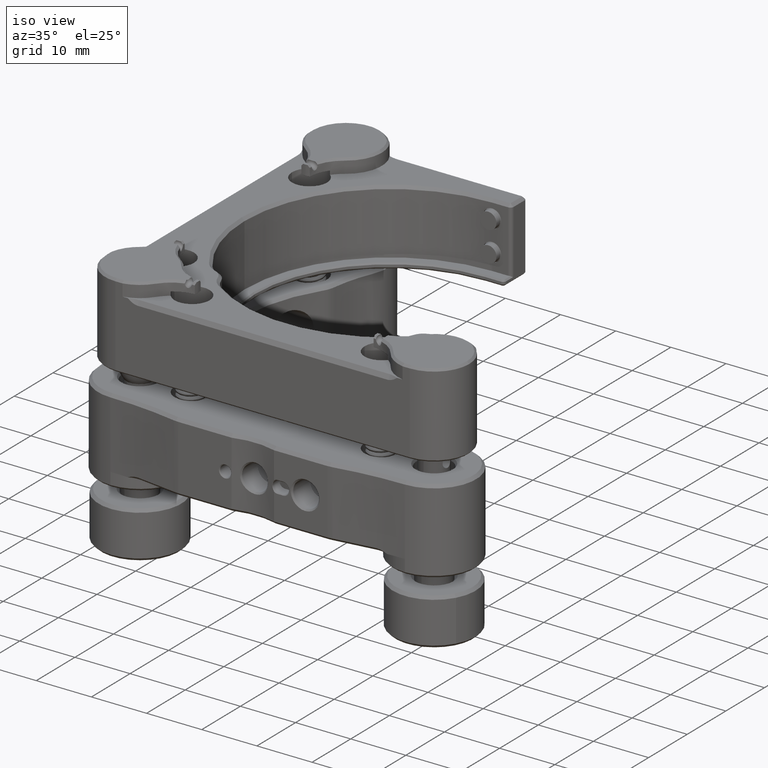
[diagram: clean part render]
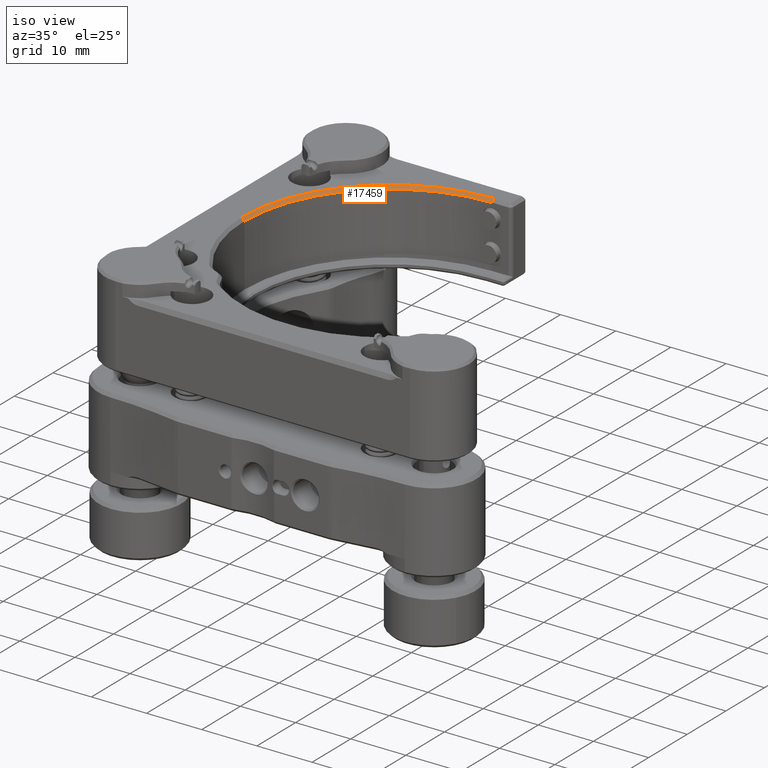
[diagram: same view with one face highlighted and labeled with its STEP entity id]
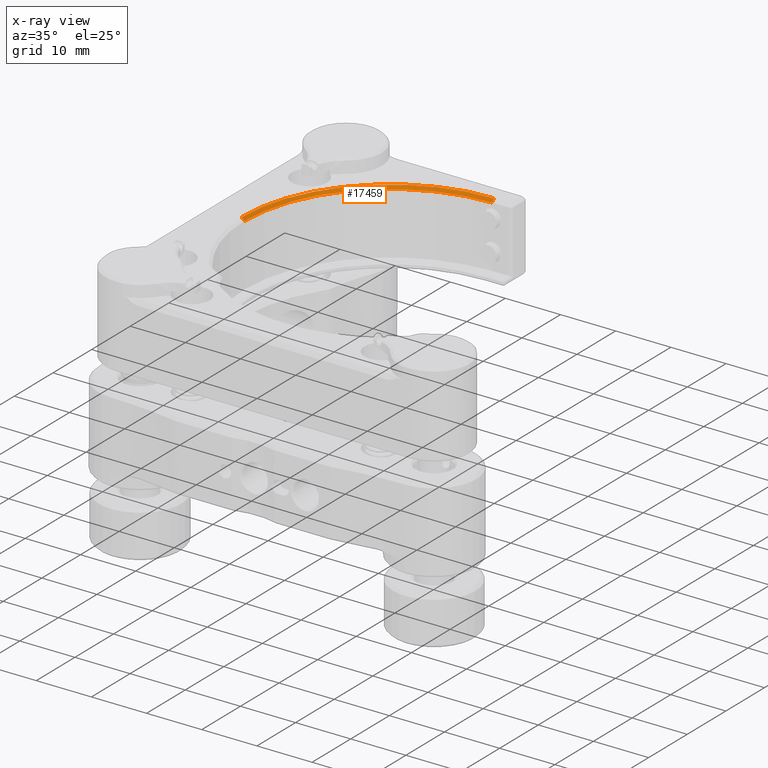
[diagram: x-ray of the same camera — body ghosted, the highlighted face saturated]
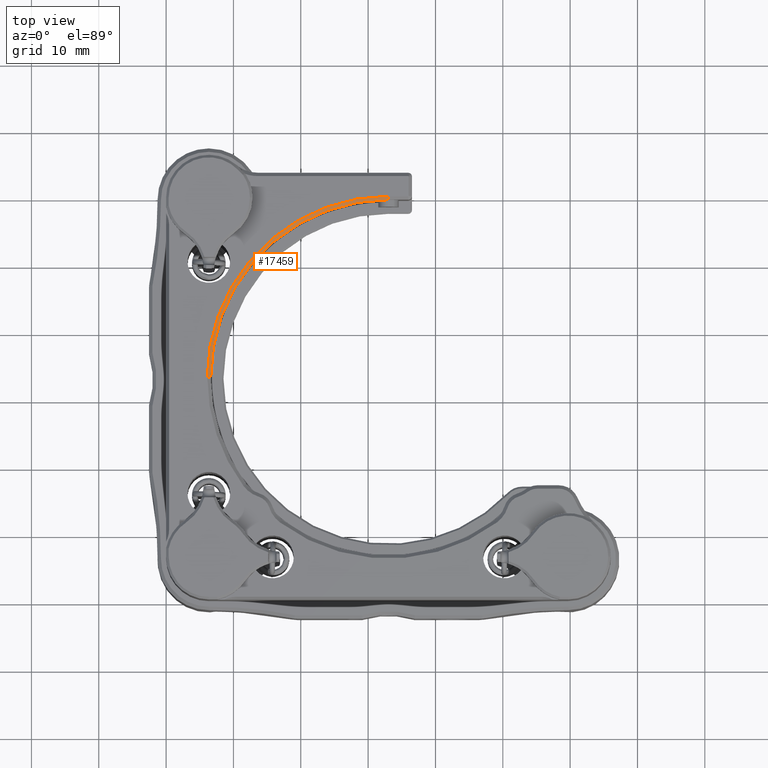
[diagram: same view with one face highlighted and labeled with its STEP entity id]
A machine part, iso view. The second image highlights one B-rep face of the part: STEP entity #17459.
The next image is the same camera in x-ray: the body ghosted, the highlighted face saturated — about 0% of this face is hidden behind the body in this view.
A second angle (top view) of the same face is appended — the face is thin or edge-on in the first view.
In plain terms, the highlighted conical surface has half-angle 45 deg.
Its self-contained STEP definition (entity closure, byte-faithful):
#167 = DIRECTION ( 'NONE',  ( 1.000000000000000000, 7.738543387257124025E-16, 0.000000000000000000 ) ) ;
#636 = VECTOR ( 'NONE', #18837, 1000.000000000000000 ) ;
#960 = AXIS2_PLACEMENT_3D ( 'NONE', #19107, #28089, #7814 ) ;
#1989 = CARTESIAN_POINT ( 'NONE',  ( -40.66343117310596256, 67.52924649506380206, 29.07856876018479753 ) ) ;
#2770 = EDGE_CURVE ( 'NONE', #13414, #18621, #3265, .T. ) ;
#3265 = LINE ( 'NONE', #11821, #636 ) ;
#4463 = CARTESIAN_POINT ( 'NONE',  ( -14.26343117310593911, 40.62924649506376795, 29.57856876018480463 ) ) ;
#5307 = FACE_OUTER_BOUND ( 'NONE', #11001, .T. ) ;
#5451 = CARTESIAN_POINT ( 'NONE',  ( -40.66343117310594124, 40.62924649506374664, 29.57856876018480463 ) ) ;
#7150 = CARTESIAN_POINT ( 'NONE',  ( -13.76343117310591069, 40.62924649506376795, 29.07856876018479753 ) ) ;
#7181 = ORIENTED_EDGE ( 'NONE', *, *, #20185, .T. ) ;
#7814 = DIRECTION ( 'NONE',  ( 1.000000000000000000, 7.885106708985487062E-16, 0.000000000000000000 ) ) ;
#8494 = CIRCLE ( 'NONE', #960, 26.39999999999999858 ) ;
#8941 = VERTEX_POINT ( 'NONE', #19010 ) ;
#11001 = EDGE_LOOP ( 'NONE', ( #27225, #21595, #25821, #7181 ) ) ;
#11205 = CARTESIAN_POINT ( 'NONE',  ( -40.66343117310594124, 40.62924649506374664, 29.07856876018479753 ) ) ;
#11821 = CARTESIAN_POINT ( 'NONE',  ( -14.26343117310593911, 40.62924649506376795, 29.57856876018480463 ) ) ;
#12415 = VECTOR ( 'NONE', #17848, 999.9999999999998863 ) ;
#13414 = VERTEX_POINT ( 'NONE', #4463 ) ;
#13496 = CONICAL_SURFACE ( 'NONE', #21466, 26.39999999999999858, 0.7853981633974691512 ) ;
#14494 = EDGE_CURVE ( 'NONE', #8941, #28569, #22116, .T. ) ;
#16974 = CARTESIAN_POINT ( 'NONE',  ( -40.66343117310596256, 67.02924649506377364, 29.57856876018480818 ) ) ;
#17459 = ADVANCED_FACE ( 'NONE', ( #5307 ), #13496, .F. ) ;
#17848 = DIRECTION ( 'NONE',  ( 5.519166404259695223E-16, -0.7071067811865574537, 0.7071067811865376918 ) ) ;
#18621 = VERTEX_POINT ( 'NONE', #7150 ) ;
#18837 = DIRECTION ( 'NONE',  ( 0.7071067811865622277, 5.519166404259732694E-16, -0.7071067811865328068 ) ) ;
#19010 = CARTESIAN_POINT ( 'NONE',  ( -40.66343117310596256, 67.52924649506380206, 29.07856876018479753 ) ) ;
#19107 = CARTESIAN_POINT ( 'NONE',  ( -40.66343117310594124, 40.62924649506374664, 29.57856876018480463 ) ) ;
#19231 = DIRECTION ( 'NONE',  ( 1.000000000000000000, 7.885106708985487062E-16, 0.000000000000000000 ) ) ;
#20138 = DIRECTION ( 'NONE',  ( -0.000000000000000000, 0.000000000000000000, -1.000000000000000000 ) ) ;
#20185 = EDGE_CURVE ( 'NONE', #8941, #18621, #27522, .T. ) ;
#21466 = AXIS2_PLACEMENT_3D ( 'NONE', #5451, #23478, #19231 ) ;
#21595 = ORIENTED_EDGE ( 'NONE', *, *, #27635, .T. ) ;
#22116 = LINE ( 'NONE', #1989, #12415 ) ;
#23478 = DIRECTION ( 'NONE',  ( -0.000000000000000000, 0.000000000000000000, -1.000000000000000000 ) ) ;
#24657 = AXIS2_PLACEMENT_3D ( 'NONE', #11205, #20138, #167 ) ;
#25821 = ORIENTED_EDGE ( 'NONE', *, *, #14494, .F. ) ;
#27225 = ORIENTED_EDGE ( 'NONE', *, *, #2770, .F. ) ;
#27522 = CIRCLE ( 'NONE', #24657, 26.90000000000002700 ) ;
#27635 = EDGE_CURVE ( 'NONE', #13414, #28569, #8494, .T. ) ;
#28089 = DIRECTION ( 'NONE',  ( 0.000000000000000000, -0.000000000000000000, 1.000000000000000000 ) ) ;
#28569 = VERTEX_POINT ( 'NONE', #16974 ) ;